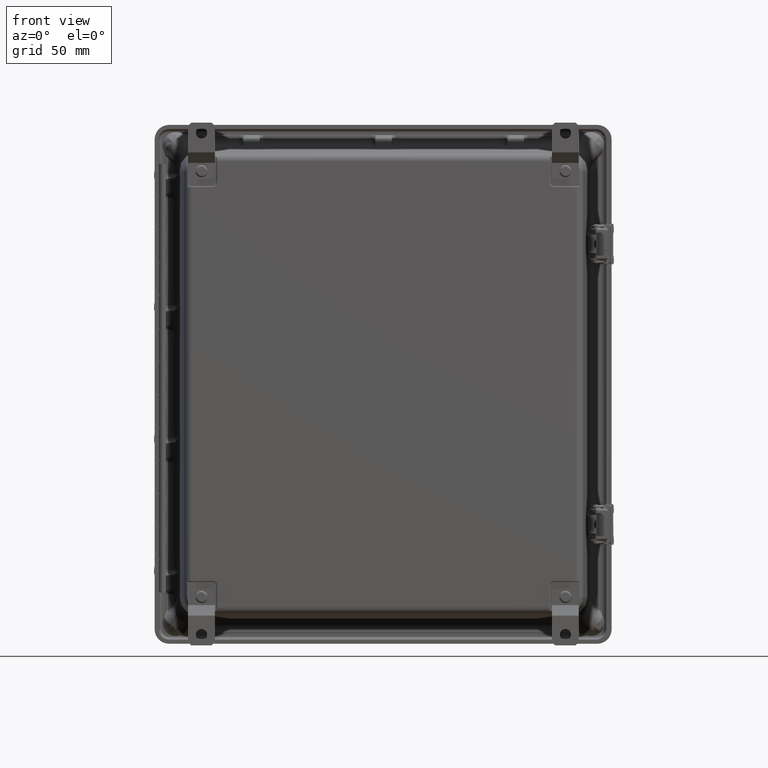
[diagram: clean part render]
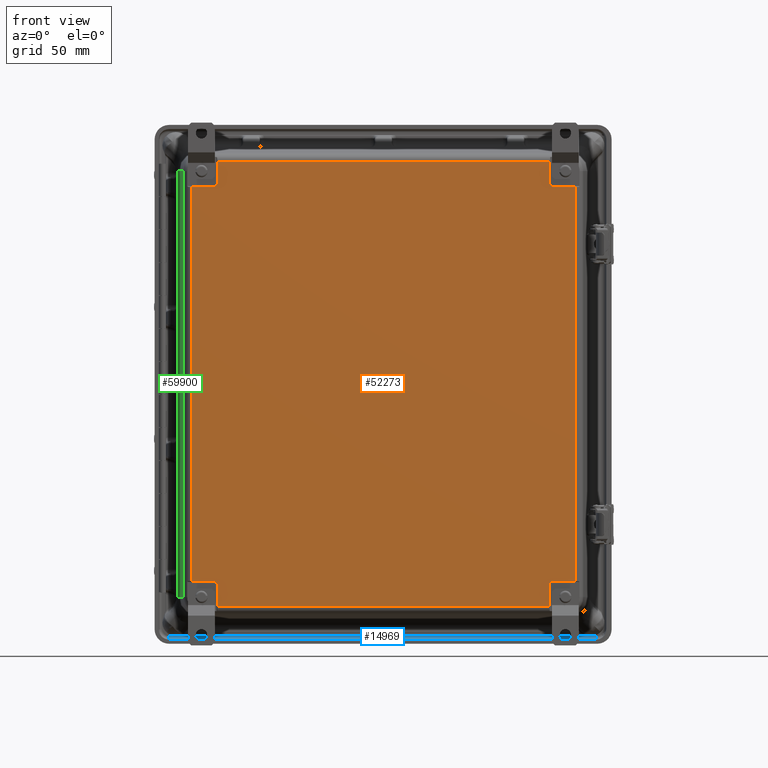
[diagram: same view with three faces highlighted in distinct colors, each labeled with its STEP entity id]
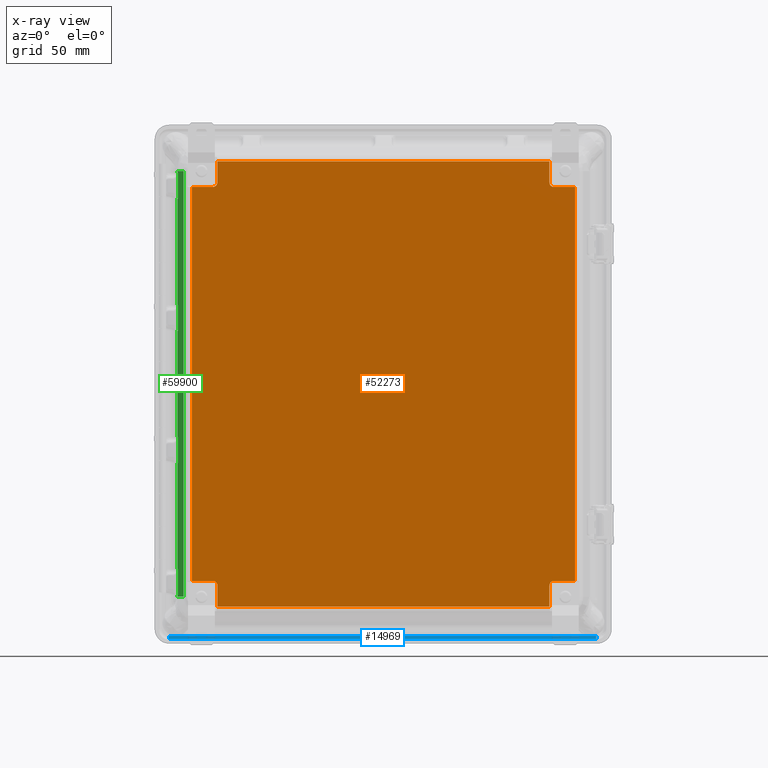
[diagram: x-ray of the same camera — body ghosted, the three highlighted faces saturated]
A machine part, front view with three faces highlighted in distinct colors.
The next image is the same camera in x-ray (body ghosted, the three faces saturated) — at least one of them is partly hidden behind the body in this view.
Their STEP definitions:

[orange] entity #52273 — the highlighted planar face has unit normal (0, -1, 0).
#731 = PLANE ( 'NONE',  #24927 ) ;
#751 = CARTESIAN_POINT ( 'NONE',  ( 5.514759860282454800, -6.128457498691858500, 6.748078965890023500 ) ) ;
#951 = CARTESIAN_POINT ( 'NONE',  ( -5.171179539717544000, -6.128457498691858500, 5.969985390059867400 ) ) ;
#1553 = ORIENTED_EDGE ( 'NONE', *, *, #7719, .T. ) ;
#2735 = DIRECTION ( 'NONE',  ( -0.0000000000000000000, 1.000000000000000000, 0.0000000000000000000 ) ) ;
#3003 = DIRECTION ( 'NONE',  ( 0.0000000000000000000, 0.0000000000000000000, -1.000000000000000000 ) ) ;
#3014 = VERTEX_POINT ( 'NONE', #53905 ) ;
#4220 = CARTESIAN_POINT ( 'NONE',  ( 5.171279660282454700, -6.128457498691858500, 5.969985390059869200 ) ) ;
#4325 = CARTESIAN_POINT ( 'NONE',  ( 5.171279660282454700, -6.128457498691858500, 5.969985390059869200 ) ) ;
#4330 = EDGE_CURVE ( 'NONE', #53900, #3014, #31550, .T. ) ;
#6024 = LINE ( 'NONE', #18995, #20122 ) ;
#6186 = VECTOR ( 'NONE', #54666, 39.37007874015748100 ) ;
#6390 = VECTOR ( 'NONE', #50547, 39.37007874015748100 ) ;
#7361 = LINE ( 'NONE', #52114, #48132 ) ;
#7648 = VERTEX_POINT ( 'NONE', #16209 ) ;
#7719 = EDGE_CURVE ( 'NONE', #38417, #39601, #17905, .T. ) ;
#9457 = EDGE_CURVE ( 'NONE', #42441, #56257, #59943, .T. ) ;
#9688 = DIRECTION ( 'NONE',  ( -0.0000000000000000000, -0.0000000000000000000, -1.000000000000000000 ) ) ;
#11003 = ORIENTED_EDGE ( 'NONE', *, *, #53692, .T. ) ;
#12492 = VERTEX_POINT ( 'NONE', #951 ) ;
#13205 = VERTEX_POINT ( 'NONE', #60244 ) ;
#13744 = DIRECTION ( 'NONE',  ( -0.0000000000000000000, -0.0000000000000000000, -1.000000000000000000 ) ) ;
#13937 = EDGE_CURVE ( 'NONE', #54137, #13205, #17742, .T. ) ;
#15069 = VERTEX_POINT ( 'NONE', #37888 ) ;
#15255 = LINE ( 'NONE', #44635, #40452 ) ;
#15520 = CIRCLE ( 'NONE', #46802, 0.1395127193384542700 ) ;
#15601 = ORIENTED_EDGE ( 'NONE', *, *, #9457, .T. ) ;
#16209 = CARTESIAN_POINT ( 'NONE',  ( -5.031666820379089500, -6.128457498691858500, -6.748165547093380600 ) ) ;
#16258 = DIRECTION ( 'NONE',  ( 1.000000000000000000, -0.0000000000000000000, 9.921365511764171400E-017 ) ) ;
#16782 = ORIENTED_EDGE ( 'NONE', *, *, #61096, .T. ) ;
#17312 = EDGE_CURVE ( 'NONE', #59351, #53900, #55277, .T. ) ;
#17632 = DIRECTION ( 'NONE',  ( 0.0000000000000000000, -0.0000000000000000000, 1.000000000000000000 ) ) ;
#17742 = LINE ( 'NONE', #42801, #30336 ) ;
#17905 = CIRCLE ( 'NONE', #60689, 0.1395127193384542700 ) ;
#18053 = DIRECTION ( 'NONE',  ( -0.0000000000000000000, 1.000000000000000000, 0.0000000000000000000 ) ) ;
#18790 = LINE ( 'NONE', #54872, #6186 ) ;
#18995 = CARTESIAN_POINT ( 'NONE',  ( -5.809760396209247400, -6.128457498691858500, 5.969985390059869200 ) ) ;
#19233 = EDGE_CURVE ( 'NONE', #31145, #42441, #7361, .T. ) ;
#20122 = VECTOR ( 'NONE', #52173, 39.37007874015748100 ) ;
#20448 = VECTOR ( 'NONE', #56084, 39.37007874015748100 ) ;
#21317 = ORIENTED_EDGE ( 'NONE', *, *, #13937, .T. ) ;
#21507 = ORIENTED_EDGE ( 'NONE', *, *, #29672, .T. ) ;
#21881 = CARTESIAN_POINT ( 'NONE',  ( 5.171279660282454700, -6.128457498691858500, -5.970071971263224400 ) ) ;
#21972 = CARTESIAN_POINT ( 'NONE',  ( 5.031766940944000200, -6.128457498691858500, 6.748078965890023500 ) ) ;
#22048 = VECTOR ( 'NONE', #57452, 39.37007874015748100 ) ;
#22928 = DIRECTION ( 'NONE',  ( 1.000000000000000000, -0.0000000000000000000, -0.0000000000000000000 ) ) ;
#22943 = CARTESIAN_POINT ( 'NONE',  ( -5.171179539717544000, -6.128457498691858500, -5.970071971263225300 ) ) ;
#23471 = CARTESIAN_POINT ( 'NONE',  ( -5.809760396209245700, -6.128457498691858500, -5.970071971263226200 ) ) ;
#23513 = CARTESIAN_POINT ( 'NONE',  ( 5.031766940943999300, -6.128457498691858500, -6.109584690601678000 ) ) ;
#23552 = LINE ( 'NONE', #751, #22048 ) ;
#23562 = CARTESIAN_POINT ( 'NONE',  ( 5.809860516774157300, -6.128457498691858500, 5.969985390059869200 ) ) ;
#23706 = DIRECTION ( 'NONE',  ( -0.0000000000000000000, -0.0000000000000000000, 1.000000000000000000 ) ) ;
#23876 = EDGE_CURVE ( 'NONE', #24566, #38417, #18790, .T. ) ;
#24157 = CARTESIAN_POINT ( 'NONE',  ( 5.031766940944000200, -6.128457498691858500, -6.748165547093379700 ) ) ;
#24547 = DIRECTION ( 'NONE',  ( 0.0000000000000000000, 0.0000000000000000000, -1.000000000000000000 ) ) ;
#24566 = VERTEX_POINT ( 'NONE', #24157 ) ;
#24927 = AXIS2_PLACEMENT_3D ( 'NONE', #43392, #52939, #24547 ) ;
#25314 = CARTESIAN_POINT ( 'NONE',  ( -5.031666820379091300, -6.128457498691858500, 6.748078965890024400 ) ) ;
#25370 = DIRECTION ( 'NONE',  ( -0.0000000000000000000, 1.000000000000000000, 0.0000000000000000000 ) ) ;
#26534 = ORIENTED_EDGE ( 'NONE', *, *, #17312, .T. ) ;
#27081 = EDGE_CURVE ( 'NONE', #12492, #59351, #6024, .T. ) ;
#29672 = EDGE_CURVE ( 'NONE', #15069, #54137, #23552, .T. ) ;
#29835 = CIRCLE ( 'NONE', #30816, 0.1395127193384542700 ) ;
#30139 = LINE ( 'NONE', #32567, #53832 ) ;
#30336 = VECTOR ( 'NONE', #9688, 39.37007874015748100 ) ;
#30816 = AXIS2_PLACEMENT_3D ( 'NONE', #46395, #18053, #51180 ) ;
#30923 = ORIENTED_EDGE ( 'NONE', *, *, #44977, .T. ) ;
#31101 = CARTESIAN_POINT ( 'NONE',  ( 5.171279660282454700, -6.128457498691858500, -6.109584690601678000 ) ) ;
#31145 = VERTEX_POINT ( 'NONE', #50817 ) ;
#31385 = DIRECTION ( 'NONE',  ( -0.0000000000000000000, 1.000000000000000000, 0.0000000000000000000 ) ) ;
#31550 = LINE ( 'NONE', #22943, #20448 ) ;
#31697 = VECTOR ( 'NONE', #22928, 39.37007874015748100 ) ;
#32567 = CARTESIAN_POINT ( 'NONE',  ( -5.031666820379089500, -6.128457498691858500, -6.748165547093380600 ) ) ;
#33955 = ORIENTED_EDGE ( 'NONE', *, *, #49821, .T. ) ;
#34191 = ORIENTED_EDGE ( 'NONE', *, *, #4330, .T. ) ;
#34987 = EDGE_CURVE ( 'NONE', #13205, #12492, #29835, .T. ) ;
#35872 = DIRECTION ( 'NONE',  ( 0.0000000000000000000, 0.0000000000000000000, -1.000000000000000000 ) ) ;
#36152 = ORIENTED_EDGE ( 'NONE', *, *, #34987, .T. ) ;
#36261 = VECTOR ( 'NONE', #51555, 39.37007874015748100 ) ;
#37252 = ORIENTED_EDGE ( 'NONE', *, *, #40035, .T. ) ;
#37888 = CARTESIAN_POINT ( 'NONE',  ( 5.031766940944000200, -6.128457498691858500, 6.748078965890023500 ) ) ;
#38417 = VERTEX_POINT ( 'NONE', #23513 ) ;
#39366 = ORIENTED_EDGE ( 'NONE', *, *, #27081, .T. ) ;
#39405 = VECTOR ( 'NONE', #17632, 39.37007874015748100 ) ;
#39601 = VERTEX_POINT ( 'NONE', #21881 ) ;
#40035 = EDGE_CURVE ( 'NONE', #7648, #24566, #15255, .T. ) ;
#40362 = ORIENTED_EDGE ( 'NONE', *, *, #23876, .T. ) ;
#40452 = VECTOR ( 'NONE', #16258, 39.37007874015748100 ) ;
#40752 = CARTESIAN_POINT ( 'NONE',  ( -5.809760396209247400, -6.128457498691858500, 5.969985390059869200 ) ) ;
#40882 = LINE ( 'NONE', #21972, #39405 ) ;
#42441 = VERTEX_POINT ( 'NONE', #23562 ) ;
#42527 = FACE_OUTER_BOUND ( 'NONE', #57108, .T. ) ;
#42789 = CIRCLE ( 'NONE', #47630, 0.1395127193384542700 ) ;
#42801 = CARTESIAN_POINT ( 'NONE',  ( -5.031666820379089500, -6.128457498691858500, 6.109498109398323600 ) ) ;
#43392 = CARTESIAN_POINT ( 'NONE',  ( 5.514759860282454800, -6.128457498691858500, 6.452978309398321100 ) ) ;
#44460 = ORIENTED_EDGE ( 'NONE', *, *, #53080, .T. ) ;
#44635 = CARTESIAN_POINT ( 'NONE',  ( 5.514759860282455700, -6.128457498691858500, -6.748165547093379700 ) ) ;
#44977 = EDGE_CURVE ( 'NONE', #61351, #15069, #40882, .T. ) ;
#45785 = CARTESIAN_POINT ( 'NONE',  ( -5.809760396209247400, -6.128457498691858500, 6.452978309398319300 ) ) ;
#46395 = CARTESIAN_POINT ( 'NONE',  ( -5.171179539717544000, -6.128457498691858500, 6.109498109398323600 ) ) ;
#46802 = AXIS2_PLACEMENT_3D ( 'NONE', #53738, #25370, #58467 ) ;
#47630 = AXIS2_PLACEMENT_3D ( 'NONE', #59707, #31385, #3003 ) ;
#48132 = VECTOR ( 'NONE', #23706, 39.37007874015748100 ) ;
#49512 = CARTESIAN_POINT ( 'NONE',  ( -5.031666820379088600, -6.128457498691858500, -6.109584690601678000 ) ) ;
#49821 = EDGE_CURVE ( 'NONE', #51339, #7648, #30139, .T. ) ;
#50547 = DIRECTION ( 'NONE',  ( 1.695746737221765600E-016, -0.0000000000000000000, -1.000000000000000000 ) ) ;
#50817 = CARTESIAN_POINT ( 'NONE',  ( 5.809860516774157300, -6.128457498691858500, -5.970071971263224400 ) ) ;
#51180 = DIRECTION ( 'NONE',  ( 0.0000000000000000000, 0.0000000000000000000, -1.000000000000000000 ) ) ;
#51339 = VERTEX_POINT ( 'NONE', #49512 ) ;
#51352 = CARTESIAN_POINT ( 'NONE',  ( 5.809860516774157300, -6.128457498691858500, -5.970071971263225300 ) ) ;
#51555 = DIRECTION ( 'NONE',  ( -1.000000000000000000, -0.0000000000000000000, -0.0000000000000000000 ) ) ;
#52114 = CARTESIAN_POINT ( 'NONE',  ( 5.809860516774157300, -6.128457498691858500, 6.452978309398321100 ) ) ;
#52173 = DIRECTION ( 'NONE',  ( -1.000000000000000000, -0.0000000000000000000, -0.0000000000000000000 ) ) ;
#52273 = ADVANCED_FACE ( 'NONE', ( #42527 ), #731, .T. ) ;
#52939 = DIRECTION ( 'NONE',  ( 0.0000000000000000000, -1.000000000000000000, 0.0000000000000000000 ) ) ;
#53080 = EDGE_CURVE ( 'NONE', #39601, #31145, #56902, .T. ) ;
#53692 = EDGE_CURVE ( 'NONE', #3014, #51339, #42789, .T. ) ;
#53738 = CARTESIAN_POINT ( 'NONE',  ( 5.171279660282454700, -6.128457498691858500, 6.109498109398323600 ) ) ;
#53832 = VECTOR ( 'NONE', #13744, 39.37007874015748100 ) ;
#53900 = VERTEX_POINT ( 'NONE', #23471 ) ;
#53905 = CARTESIAN_POINT ( 'NONE',  ( -5.171179539717544000, -6.128457498691858500, -5.970071971263225300 ) ) ;
#54137 = VERTEX_POINT ( 'NONE', #25314 ) ;
#54666 = DIRECTION ( 'NONE',  ( 0.0000000000000000000, -0.0000000000000000000, 1.000000000000000000 ) ) ;
#54872 = CARTESIAN_POINT ( 'NONE',  ( 5.031766940944000200, -6.128457498691858500, -6.109584690601678000 ) ) ;
#55277 = LINE ( 'NONE', #45785, #6390 ) ;
#55769 = CARTESIAN_POINT ( 'NONE',  ( 5.031766940943999300, -6.128457498691858500, 6.109498109398323600 ) ) ;
#56084 = DIRECTION ( 'NONE',  ( 1.000000000000000000, -0.0000000000000000000, -0.0000000000000000000 ) ) ;
#56257 = VERTEX_POINT ( 'NONE', #4220 ) ;
#56902 = LINE ( 'NONE', #51352, #31697 ) ;
#57108 = EDGE_LOOP ( 'NONE', ( #36152, #39366, #26534, #34191, #11003, #33955, #37252, #40362, #1553, #44460, #60752, #15601, #16782, #30923, #21507, #21317 ) ) ;
#57452 = DIRECTION ( 'NONE',  ( -1.000000000000000000, -0.0000000000000000000, 9.921365511764170200E-017 ) ) ;
#58467 = DIRECTION ( 'NONE',  ( 0.0000000000000000000, 0.0000000000000000000, -1.000000000000000000 ) ) ;
#59351 = VERTEX_POINT ( 'NONE', #40752 ) ;
#59707 = CARTESIAN_POINT ( 'NONE',  ( -5.171179539717544000, -6.128457498691858500, -6.109584690601678000 ) ) ;
#59943 = LINE ( 'NONE', #4325, #36261 ) ;
#60244 = CARTESIAN_POINT ( 'NONE',  ( -5.031666820379088600, -6.128457498691858500, 6.109498109398323600 ) ) ;
#60689 = AXIS2_PLACEMENT_3D ( 'NONE', #31101, #2735, #35872 ) ;
#60752 = ORIENTED_EDGE ( 'NONE', *, *, #19233, .T. ) ;
#61096 = EDGE_CURVE ( 'NONE', #56257, #61351, #15520, .T. ) ;
#61351 = VERTEX_POINT ( 'NONE', #55769 ) ;

[blue] entity #14969 — the highlighted cylindrical surface (edge-blend (fillet) strip) has radius 2.3622 mm, axis along (-1, 0, -0).
#624 = ORIENTED_EDGE ( 'NONE', *, *, #52897, .T. ) ;
#2899 = DIRECTION ( 'NONE',  ( 0.0000000000000000000, 0.0000000000000000000, 1.000000000000000000 ) ) ;
#3413 = CARTESIAN_POINT ( 'NONE',  ( -7.631335972718049200, 0.7820000000000000300, 6.488999999999997200 ) ) ;
#4270 = LINE ( 'NONE', #35940, #51697 ) ;
#7595 = VERTEX_POINT ( 'NONE', #58219 ) ;
#8205 = DIRECTION ( 'NONE',  ( -1.000000000000000000, 0.0000000000000000000, 0.0000000000000000000 ) ) ;
#9968 = ORIENTED_EDGE ( 'NONE', *, *, #43095, .F. ) ;
#10481 = CARTESIAN_POINT ( 'NONE',  ( -7.631335972718049200, 0.8750000000000000000, 6.488999999999997200 ) ) ;
#12350 = DIRECTION ( 'NONE',  ( -0.0000000000000000000, -0.0000000000000000000, 1.000000000000000000 ) ) ;
#14969 = ADVANCED_FACE ( 'NONE', ( #26509 ), #25039, .F. ) ;
#15742 = VERTEX_POINT ( 'NONE', #49985 ) ;
#21310 = CARTESIAN_POINT ( 'NONE',  ( -7.631335972718049200, 0.7820000000000000300, -6.459000000000001400 ) ) ;
#21736 = CARTESIAN_POINT ( 'NONE',  ( -7.631335972718049200, 0.7820000000000000300, 6.488999999999999900 ) ) ;
#22576 = EDGE_LOOP ( 'NONE', ( #624, #25252, #9968, #37385 ) ) ;
#22848 = DIRECTION ( 'NONE',  ( 0.0000000000000000000, 0.0000000000000000000, -1.000000000000000000 ) ) ;
#23510 = LINE ( 'NONE', #56000, #36102 ) ;
#23946 = CIRCLE ( 'NONE', #40029, 0.09300000000000034600 ) ;
#25039 = CYLINDRICAL_SURFACE ( 'NONE', #35699, 0.09300000000000034600 ) ;
#25252 = ORIENTED_EDGE ( 'NONE', *, *, #53558, .F. ) ;
#26080 = DIRECTION ( 'NONE',  ( -1.000000000000000000, 0.0000000000000000000, 1.174988384371721800E-014 ) ) ;
#26509 = FACE_OUTER_BOUND ( 'NONE', #22576, .T. ) ;
#28022 = CIRCLE ( 'NONE', #38464, 0.09300000000000034600 ) ;
#33742 = CARTESIAN_POINT ( 'NONE',  ( -7.724321808367594000, 0.7836230737986672500, -6.459000000000000500 ) ) ;
#35699 = AXIS2_PLACEMENT_3D ( 'NONE', #21736, #2899, #59602 ) ;
#35940 = CARTESIAN_POINT ( 'NONE',  ( -7.724321808367594000, 0.7836230737986673600, 6.488999999999999900 ) ) ;
#36102 = VECTOR ( 'NONE', #22848, 39.37007874015748100 ) ;
#36550 = DIRECTION ( 'NONE',  ( 0.0000000000000000000, 0.0000000000000000000, -1.000000000000000000 ) ) ;
#37385 = ORIENTED_EDGE ( 'NONE', *, *, #53440, .F. ) ;
#38464 = AXIS2_PLACEMENT_3D ( 'NONE', #21310, #54431, #26080 ) ;
#40029 = AXIS2_PLACEMENT_3D ( 'NONE', #3413, #36550, #8205 ) ;
#40730 = VERTEX_POINT ( 'NONE', #33742 ) ;
#42881 = VERTEX_POINT ( 'NONE', #10481 ) ;
#43095 = EDGE_CURVE ( 'NONE', #15742, #42881, #23946, .T. ) ;
#49985 = CARTESIAN_POINT ( 'NONE',  ( -7.724321808367594000, 0.7836230737986672500, 6.488999999999997200 ) ) ;
#51697 = VECTOR ( 'NONE', #12350, 39.37007874015748100 ) ;
#52897 = EDGE_CURVE ( 'NONE', #40730, #7595, #28022, .T. ) ;
#53440 = EDGE_CURVE ( 'NONE', #40730, #15742, #4270, .T. ) ;
#53558 = EDGE_CURVE ( 'NONE', #42881, #7595, #23510, .T. ) ;
#54431 = DIRECTION ( 'NONE',  ( -1.175167368053930700E-014, 0.0000000000000000000, -1.000000000000000000 ) ) ;
#56000 = CARTESIAN_POINT ( 'NONE',  ( -7.631335972718049200, 0.8750000000000000000, -6.459000000000000500 ) ) ;
#58219 = CARTESIAN_POINT ( 'NONE',  ( -7.631335972718049200, 0.8750000000000000000, -6.459000000000001400 ) ) ;
#59602 = DIRECTION ( 'NONE',  ( 1.000000000000000000, 0.0000000000000000000, 0.0000000000000000000 ) ) ;

[green] entity #59900 — the highlighted planar face has unit normal (-0.9994, -0.0349, -0).
#103 = CARTESIAN_POINT ( 'NONE',  ( -6.242367358640659200, -0.6633208354358416400, 6.448010704829464100 ) ) ;
#202 = EDGE_CURVE ( 'NONE', #6313, #16626, #32151, .T. ) ;
#226 = ORIENTED_EDGE ( 'NONE', *, *, #49098, .T. ) ;
#988 = ORIENTED_EDGE ( 'NONE', *, *, #1603, .T. ) ;
#1128 = CARTESIAN_POINT ( 'NONE',  ( -6.228843870452932300, -1.050582868448125800, -6.453064890601677200 ) ) ;
#1310 = DIRECTION ( 'NONE',  ( 1.695746737221765100E-016, -1.538867368090737600E-033, -1.000000000000000000 ) ) ;
#1603 = EDGE_CURVE ( 'NONE', #19815, #34868, #34066, .T. ) ;
#2073 = EDGE_CURVE ( 'NONE', #12216, #6891, #27323, .T. ) ;
#2199 = CARTESIAN_POINT ( 'NONE',  ( -6.248530016304006700, -0.4868454096923873800, 6.399904109398323500 ) ) ;
#2271 = CARTESIAN_POINT ( 'NONE',  ( -6.248530016304005000, -0.4868454096923873800, -6.453064890601677200 ) ) ;
#2460 = VECTOR ( 'NONE', #43425, 39.37007874015748100 ) ;
#2744 = DIRECTION ( 'NONE',  ( -0.03489949670250104600, 0.9993908270190957600, -7.703719777548943400E-034 ) ) ;
#2757 = VECTOR ( 'NONE', #1310, 39.37007874015748100 ) ;
#2873 = EDGE_CURVE ( 'NONE', #40784, #18874, #20499, .T. ) ;
#2895 = VECTOR ( 'NONE', #38627, 39.37007874015748900 ) ;
#2997 = CARTESIAN_POINT ( 'NONE',  ( -6.242678502220662100, -0.6544108490715451200, -6.439239246942016800 ) ) ;
#3040 = VECTOR ( 'NONE', #35388, 39.37007874015748100 ) ;
#4408 = PLANE ( 'NONE',  #52727 ) ;
#4461 = ORIENTED_EDGE ( 'NONE', *, *, #11396, .T. ) ;
#4627 = CARTESIAN_POINT ( 'NONE',  ( -6.059957889753476000, -5.886844587691330200, -6.453064890601677200 ) ) ;
#4859 = CARTESIAN_POINT ( 'NONE',  ( -6.242487326098364000, -0.6598854169313842500, 6.445399656829782700 ) ) ;
#6313 = VERTEX_POINT ( 'NONE', #35566 ) ;
#6320 = VECTOR ( 'NONE', #37749, 39.37007874015748100 ) ;
#6594 = CARTESIAN_POINT ( 'NONE',  ( -6.248530016304005800, -0.4868454096923873800, 1.611209309398323500 ) ) ;
#6704 = LINE ( 'NONE', #14213, #43038 ) ;
#6891 = VERTEX_POINT ( 'NONE', #41376 ) ;
#7146 = VERTEX_POINT ( 'NONE', #19181 ) ;
#7514 = CARTESIAN_POINT ( 'NONE',  ( -6.248530016304005800, -0.4868454096923873800, 2.394304109398321900 ) ) ;
#8173 = EDGE_CURVE ( 'NONE', #6891, #38748, #49000, .T. ) ;
#8664 = LINE ( 'NONE', #21688, #32353 ) ;
#8857 = ORIENTED_EDGE ( 'NONE', *, *, #54579, .T. ) ;
#9161 = EDGE_CURVE ( 'NONE', #24948, #12216, #22925, .T. ) ;
#9198 = CARTESIAN_POINT ( 'NONE',  ( -6.265709739717543400, 0.005117501308141511400, -6.453064890601677200 ) ) ;
#9438 = CARTESIAN_POINT ( 'NONE',  ( -6.241934177566280400, -0.6757255183991599500, 6.451190084694187200 ) ) ;
#10154 = VERTEX_POINT ( 'NONE', #56829 ) ;
#10688 = CARTESIAN_POINT ( 'NONE',  ( -6.242678502220662100, -0.6544108490715451200, -6.439239246942016800 ) ) ;
#10862 = VECTOR ( 'NONE', #34953, 39.37007874015748900 ) ;
#11043 = CARTESIAN_POINT ( 'NONE',  ( -6.228843870452932300, -1.050582868448123800, -1.611295890601677700 ) ) ;
#11147 = VERTEX_POINT ( 'NONE', #15905 ) ;
#11357 = CARTESIAN_POINT ( 'NONE',  ( -6.265697954248398800, 0.004780009628664140700, -6.429704277713730300 ) ) ;
#11396 = EDGE_CURVE ( 'NONE', #13342, #19815, #17983, .T. ) ;
#11645 = CARTESIAN_POINT ( 'NONE',  ( -6.228843870452932300, -1.050582868448125800, -6.399990690601677000 ) ) ;
#12216 = VERTEX_POINT ( 'NONE', #13197 ) ;
#12267 = CARTESIAN_POINT ( 'NONE',  ( -6.248530016304006700, -0.4868454096923873800, 5.616809309398322000 ) ) ;
#12409 = DIRECTION ( 'NONE',  ( 0.03489949670250104600, -0.9993908270190957600, 7.703719777548943400E-034 ) ) ;
#12524 = EDGE_CURVE ( 'NONE', #27378, #16626, #45781, .T. ) ;
#13197 = CARTESIAN_POINT ( 'NONE',  ( -6.228843870452932300, -1.050582868448124000, -2.394390690601677200 ) ) ;
#13281 = VECTOR ( 'NONE', #54031, 39.37007874015748100 ) ;
#13342 = VERTEX_POINT ( 'NONE', #27943 ) ;
#13581 = LINE ( 'NONE', #15259, #2460 ) ;
#13959 = DIRECTION ( 'NONE',  ( -0.9993908270190957600, -0.03489949670250104600, -1.694713734126993400E-016 ) ) ;
#14024 = ORIENTED_EDGE ( 'NONE', *, *, #30603, .T. ) ;
#14161 = ORIENTED_EDGE ( 'NONE', *, *, #9161, .T. ) ;
#14213 = CARTESIAN_POINT ( 'NONE',  ( -6.248530016304005000, -0.4868454096923873800, -6.453064890601677200 ) ) ;
#14579 = DIRECTION ( 'NONE',  ( 1.757106239172417000E-016, -1.757106239172417300E-016, -1.000000000000000000 ) ) ;
#15259 = CARTESIAN_POINT ( 'NONE',  ( -6.248530016304005000, -0.4868454096923873800, -6.453064890601677200 ) ) ;
#15294 = LINE ( 'NONE', #25891, #51593 ) ;
#15376 = LINE ( 'NONE', #58020, #2757 ) ;
#15508 = LINE ( 'NONE', #57423, #2895 ) ;
#15551 = ORIENTED_EDGE ( 'NONE', *, *, #30150, .T. ) ;
#15793 = ORIENTED_EDGE ( 'NONE', *, *, #41721, .T. ) ;
#15811 = CARTESIAN_POINT ( 'NONE',  ( -6.248530016304005000, -0.4868454096923873800, -6.453064890601677200 ) ) ;
#15905 = CARTESIAN_POINT ( 'NONE',  ( -6.059957889753477800, -5.886844587691329300, 6.452978309398322000 ) ) ;
#16211 = EDGE_CURVE ( 'NONE', #18520, #27378, #59703, .T. ) ;
#16626 = VERTEX_POINT ( 'NONE', #44646 ) ;
#17472 = LINE ( 'NONE', #50094, #39706 ) ;
#17983 = LINE ( 'NONE', #42937, #20934 ) ;
#18076 = VECTOR ( 'NONE', #49550, 39.37007874015748900 ) ;
#18520 = VERTEX_POINT ( 'NONE', #50924 ) ;
#18733 = CARTESIAN_POINT ( 'NONE',  ( -6.228843870452933200, -1.050582868448121100, 1.611209309398323500 ) ) ;
#18874 = VERTEX_POINT ( 'NONE', #30177 ) ;
#19071 = CARTESIAN_POINT ( 'NONE',  ( -6.242657868161157500, -0.6550017312258367100, 6.439816915665081100 ) ) ;
#19181 = CARTESIAN_POINT ( 'NONE',  ( -6.248530016304005800, -0.4868454096923873800, -1.611295890601677700 ) ) ;
#19335 = EDGE_CURVE ( 'NONE', #11147, #40784, #15508, .T. ) ;
#19815 = VERTEX_POINT ( 'NONE', #38341 ) ;
#19840 = ORIENTED_EDGE ( 'NONE', *, *, #40217, .T. ) ;
#19875 = ORIENTED_EDGE ( 'NONE', *, *, #8173, .T. ) ;
#20356 = EDGE_CURVE ( 'NONE', #22533, #13342, #25776, .T. ) ;
#20499 = B_SPLINE_CURVE_WITH_KNOTS ( 'NONE', 3,
 ( #23698, #37174, #9438, #56818, #28454, #103, #33227, #4859 ),
 .UNSPECIFIED., .F., .F.,
 ( 4, 2, 2, 4 ),
 ( -6.766291768392844400E-005, 0.0002583322614168873800, 0.0004213298509672911200, 0.0005843274405176949600 ),
 .UNSPECIFIED. ) ;
#20934 = VECTOR ( 'NONE', #14579, 39.37007874015748100 ) ;
#20972 = CARTESIAN_POINT ( 'NONE',  ( -6.265709739717543400, 0.005117501308141491500, -6.453064890601677200 ) ) ;
#21456 = CARTESIAN_POINT ( 'NONE',  ( -6.231425093615387200, -0.9766663081883630900, 6.399904109398323500 ) ) ;
#21688 = CARTESIAN_POINT ( 'NONE',  ( -6.272207714755717600, 0.1911951603272742400, 6.426921265420443100 ) ) ;
#21712 = VERTEX_POINT ( 'NONE', #37307 ) ;
#22078 = EDGE_CURVE ( 'NONE', #7146, #24948, #17472, .T. ) ;
#22533 = VERTEX_POINT ( 'NONE', #2199 ) ;
#22785 = DIRECTION ( 'NONE',  ( 1.757106239172417000E-016, -1.757106239172417300E-016, -1.000000000000000000 ) ) ;
#22867 = EDGE_LOOP ( 'NONE', ( #33454, #226, #14024, #15551, #52839, #4461, #988, #42763, #31073, #15793, #50269, #40949, #31777, #14161, #43871, #19875, #8857, #24628, #48135, #32040, #37515, #49578, #35745, #19840, #24605 ) ) ;
#22913 = VECTOR ( 'NONE', #2744, 39.37007874015748100 ) ;
#22925 = LINE ( 'NONE', #60690, #46662 ) ;
#23698 = CARTESIAN_POINT ( 'NONE',  ( -6.241642157261383200, -0.6840878858139726200, 6.452978309398322000 ) ) ;
#23811 = VERTEX_POINT ( 'NONE', #11645 ) ;
#23859 = CARTESIAN_POINT ( 'NONE',  ( -6.242671624200818700, -0.6546078097896591600, 6.439374082380804300 ) ) ;
#24309 = VECTOR ( 'NONE', #59344, 39.37007874015748100 ) ;
#24605 = ORIENTED_EDGE ( 'NONE', *, *, #19335, .T. ) ;
#24628 = ORIENTED_EDGE ( 'NONE', *, *, #44823, .T. ) ;
#24948 = VERTEX_POINT ( 'NONE', #11043 ) ;
#25413 = CARTESIAN_POINT ( 'NONE',  ( -6.241642157261383200, -0.6840878858139726200, 6.452978309398322000 ) ) ;
#25469 = CARTESIAN_POINT ( 'NONE',  ( -6.231425093615386300, -0.9766663081883632000, -5.616895890601676400 ) ) ;
#25776 = LINE ( 'NONE', #21456, #24309 ) ;
#25891 = CARTESIAN_POINT ( 'NONE',  ( -6.231425093615387200, -0.9766663081883635300, 2.394304109398322800 ) ) ;
#26243 = VERTEX_POINT ( 'NONE', #7514 ) ;
#26671 = VECTOR ( 'NONE', #30294, 39.37007874015748100 ) ;
#27318 = CARTESIAN_POINT ( 'NONE',  ( -6.242678502220663000, -0.6544108490715480100, 6.439152665738659700 ) ) ;
#27323 = LINE ( 'NONE', #49488, #13281 ) ;
#27378 = VERTEX_POINT ( 'NONE', #2997 ) ;
#27943 = CARTESIAN_POINT ( 'NONE',  ( -6.228843870452933200, -1.050582868448118900, 6.399904109398323500 ) ) ;
#28454 = CARTESIAN_POINT ( 'NONE',  ( -6.242225504579618400, -0.6673830042571102800, 6.449302774635540000 ) ) ;
#28670 = EDGE_CURVE ( 'NONE', #23811, #10154, #41459, .T. ) ;
#29049 = B_SPLINE_CURVE_WITH_KNOTS ( 'NONE', 3,
 ( #42712, #61305, #47476, #19071, #52254, #23859, #56963 ),
 .UNSPECIFIED., .F., .F.,
 ( 4, 3, 4 ),
 ( 0.0002520075349367435600, 0.0004404491464765364000, 0.0004630365233079541600 ),
 .UNSPECIFIED. ) ;
#29167 = LINE ( 'NONE', #61104, #54327 ) ;
#30150 = EDGE_CURVE ( 'NONE', #40767, #22533, #15376, .T. ) ;
#30177 = CARTESIAN_POINT ( 'NONE',  ( -6.242487326098364000, -0.6598854169313842500, 6.445399656829782700 ) ) ;
#30181 = DIRECTION ( 'NONE',  ( -0.03489949670250104600, 0.9993908270190957600, -7.703719777548943400E-034 ) ) ;
#30294 = DIRECTION ( 'NONE',  ( 1.695746737221765100E-016, -1.538867368090737600E-033, -1.000000000000000000 ) ) ;
#30603 = EDGE_CURVE ( 'NONE', #51187, #40767, #8664, .T. ) ;
#31073 = ORIENTED_EDGE ( 'NONE', *, *, #50110, .T. ) ;
#31110 = CARTESIAN_POINT ( 'NONE',  ( -6.265709739717546100, 0.005117501308141439400, 5.616809309398322000 ) ) ;
#31777 = ORIENTED_EDGE ( 'NONE', *, *, #22078, .T. ) ;
#31903 = EDGE_CURVE ( 'NONE', #45751, #33784, #53015, .T. ) ;
#32040 = ORIENTED_EDGE ( 'NONE', *, *, #45754, .T. ) ;
#32151 = LINE ( 'NONE', #20972, #18076 ) ;
#32353 = VECTOR ( 'NONE', #54794, 39.37007874015748900 ) ;
#32772 = DIRECTION ( 'NONE',  ( 1.757106239172417000E-016, -1.757106239172417300E-016, -1.000000000000000000 ) ) ;
#33227 = CARTESIAN_POINT ( 'NONE',  ( -6.242437588880822100, -0.6613097044906409700, 6.447052477692268200 ) ) ;
#33454 = ORIENTED_EDGE ( 'NONE', *, *, #2873, .T. ) ;
#33760 = CARTESIAN_POINT ( 'NONE',  ( -6.265709739717543400, 0.005117501308141511400, -6.399990690601677000 ) ) ;
#33784 = VERTEX_POINT ( 'NONE', #6594 ) ;
#34066 = LINE ( 'NONE', #31110, #22913 ) ;
#34254 = DIRECTION ( 'NONE',  ( 1.757106239172417000E-016, -1.757106239172417300E-016, -1.000000000000000000 ) ) ;
#34868 = VERTEX_POINT ( 'NONE', #12267 ) ;
#34953 = DIRECTION ( 'NONE',  ( 0.03489585077468929800, -0.9992864213068273200, -0.01445433466142391000 ) ) ;
#35388 = DIRECTION ( 'NONE',  ( 1.695746737221765100E-016, -1.538867368090737600E-033, -1.000000000000000000 ) ) ;
#35507 = CARTESIAN_POINT ( 'NONE',  ( -6.228843870452932300, -1.050582868448125500, -5.616895890601676400 ) ) ;
#35566 = CARTESIAN_POINT ( 'NONE',  ( -6.059957889753476000, -5.886844587691329300, -6.453064890601677200 ) ) ;
#35745 = ORIENTED_EDGE ( 'NONE', *, *, #202, .F. ) ;
#37174 = CARTESIAN_POINT ( 'NONE',  ( -6.241788064339056400, -0.6799096537820215100, 6.452070745419117500 ) ) ;
#37307 = CARTESIAN_POINT ( 'NONE',  ( -6.228843870452933200, -1.050582868448120900, 2.394304109398322800 ) ) ;
#37483 = LINE ( 'NONE', #25469, #49446 ) ;
#37515 = ORIENTED_EDGE ( 'NONE', *, *, #16211, .T. ) ;
#37749 = DIRECTION ( 'NONE',  ( -1.695746737221765100E-016, 1.541681963340650700E-033, 1.000000000000000000 ) ) ;
#38341 = CARTESIAN_POINT ( 'NONE',  ( -6.228843870452934100, -1.050582868448119100, 5.616809309398322000 ) ) ;
#38627 = DIRECTION ( 'NONE',  ( -0.03489949670250104600, 0.9993908270190957600, -5.918070766394789300E-018 ) ) ;
#38748 = VERTEX_POINT ( 'NONE', #50804 ) ;
#39045 = CARTESIAN_POINT ( 'NONE',  ( -6.241977784647265700, -0.6744767749831135400, -6.447864872712131900 ) ) ;
#39531 = CARTESIAN_POINT ( 'NONE',  ( -6.248530016304006700, -0.4868454096923873800, 6.436728889244929700 ) ) ;
#39706 = VECTOR ( 'NONE', #12409, 39.37007874015748100 ) ;
#40217 = EDGE_CURVE ( 'NONE', #6313, #11147, #42667, .T. ) ;
#40767 = VERTEX_POINT ( 'NONE', #39531 ) ;
#40784 = VERTEX_POINT ( 'NONE', #25413 ) ;
#40949 = ORIENTED_EDGE ( 'NONE', *, *, #60243, .T. ) ;
#41376 = CARTESIAN_POINT ( 'NONE',  ( -6.248530016304005800, -0.4868454096923873800, -2.394390690601677200 ) ) ;
#41459 = LINE ( 'NONE', #33760, #52599 ) ;
#41564 = FACE_OUTER_BOUND ( 'NONE', #22867, .T. ) ;
#41721 = EDGE_CURVE ( 'NONE', #21712, #45751, #29167, .T. ) ;
#42667 = LINE ( 'NONE', #4627, #6320 ) ;
#42712 = CARTESIAN_POINT ( 'NONE',  ( -6.242487326098364000, -0.6598854169313842500, 6.445399656829782700 ) ) ;
#42763 = ORIENTED_EDGE ( 'NONE', *, *, #58189, .T. ) ;
#42937 = CARTESIAN_POINT ( 'NONE',  ( -6.228843870452932300, -1.050582868448121100, -6.453064890601677200 ) ) ;
#43038 = VECTOR ( 'NONE', #52101, 39.37007874015748100 ) ;
#43425 = DIRECTION ( 'NONE',  ( 1.695746737221765100E-016, -1.538867368090737600E-033, -1.000000000000000000 ) ) ;
#43784 = CARTESIAN_POINT ( 'NONE',  ( -6.241642157261553700, -0.6840878858090466700, -6.453064890601677200 ) ) ;
#43871 = ORIENTED_EDGE ( 'NONE', *, *, #2073, .T. ) ;
#44646 = CARTESIAN_POINT ( 'NONE',  ( -6.241642157261553700, -0.6840878858090466700, -6.453064890601677200 ) ) ;
#44823 = EDGE_CURVE ( 'NONE', #45578, #23811, #59392, .T. ) ;
#45578 = VERTEX_POINT ( 'NONE', #35507 ) ;
#45751 = VERTEX_POINT ( 'NONE', #18733 ) ;
#45754 = EDGE_CURVE ( 'NONE', #10154, #18520, #6704, .T. ) ;
#45781 = B_SPLINE_CURVE_WITH_KNOTS ( 'NONE', 3,
 ( #10688, #48364, #39045, #43784 ),
 .UNSPECIFIED., .F., .F.,
 ( 4, 4 ),
 ( -2.764305227841880700E-005, 0.0008054862230986697500 ),
 .UNSPECIFIED. ) ;
#46662 = VECTOR ( 'NONE', #22785, 39.37007874015748100 ) ;
#46814 = VECTOR ( 'NONE', #34254, 39.37007874015748100 ) ;
#47066 = DIRECTION ( 'NONE',  ( 0.03489949670250104600, -0.9993908270190957600, 0.0000000000000000000 ) ) ;
#47476 = CARTESIAN_POINT ( 'NONE',  ( -6.242600540579730700, -0.6566433783676728400, 6.441665694345085800 ) ) ;
#48135 = ORIENTED_EDGE ( 'NONE', *, *, #28670, .T. ) ;
#48364 = CARTESIAN_POINT ( 'NONE',  ( -6.242323567134448600, -0.6645748600993381900, -6.443252642063929300 ) ) ;
#49000 = LINE ( 'NONE', #2271, #3040 ) ;
#49098 = EDGE_CURVE ( 'NONE', #18874, #51187, #29049, .T. ) ;
#49105 = DIRECTION ( 'NONE',  ( 0.03489949670250104600, -0.9993908270190957600, 7.703719777548943400E-034 ) ) ;
#49446 = VECTOR ( 'NONE', #49105, 39.37007874015748100 ) ;
#49488 = CARTESIAN_POINT ( 'NONE',  ( -6.265709739717545200, 0.005117501308141488000, -2.394390690601677200 ) ) ;
#49550 = DIRECTION ( 'NONE',  ( -0.03489949670250104600, 0.9993908270190957600, 0.0000000000000000000 ) ) ;
#49578 = ORIENTED_EDGE ( 'NONE', *, *, #12524, .T. ) ;
#50094 = CARTESIAN_POINT ( 'NONE',  ( -6.231425093615386300, -0.9766663081883633100, -1.611295890601677700 ) ) ;
#50110 = EDGE_CURVE ( 'NONE', #26243, #21712, #15294, .T. ) ;
#50269 = ORIENTED_EDGE ( 'NONE', *, *, #31903, .T. ) ;
#50804 = CARTESIAN_POINT ( 'NONE',  ( -6.248530016304005000, -0.4868454096923873800, -5.616895890601676400 ) ) ;
#50924 = CARTESIAN_POINT ( 'NONE',  ( -6.248530016304005000, -0.4868454096923873800, -6.436815470448277800 ) ) ;
#51187 = VERTEX_POINT ( 'NONE', #27318 ) ;
#51508 = VECTOR ( 'NONE', #30181, 39.37007874015748100 ) ;
#51593 = VECTOR ( 'NONE', #54248, 39.37007874015748100 ) ;
#51901 = LINE ( 'NONE', #15811, #26671 ) ;
#52101 = DIRECTION ( 'NONE',  ( 1.695746737221765100E-016, -1.538867368090737600E-033, -1.000000000000000000 ) ) ;
#52254 = CARTESIAN_POINT ( 'NONE',  ( -6.242664739335457300, -0.6548049665382477100, 6.439595324587362900 ) ) ;
#52599 = VECTOR ( 'NONE', #52627, 39.37007874015748100 ) ;
#52627 = DIRECTION ( 'NONE',  ( -0.03489949670250104600, 0.9993908270190957600, -7.703719777548943400E-034 ) ) ;
#52727 = AXIS2_PLACEMENT_3D ( 'NONE', #9198, #13959, #47066 ) ;
#52839 = ORIENTED_EDGE ( 'NONE', *, *, #20356, .T. ) ;
#53015 = LINE ( 'NONE', #58501, #51508 ) ;
#54031 = DIRECTION ( 'NONE',  ( -0.03489949670250104600, 0.9993908270190957600, -7.703719777548943400E-034 ) ) ;
#54248 = DIRECTION ( 'NONE',  ( 0.03489949670250104600, -0.9993908270190957600, 7.703719777548943400E-034 ) ) ;
#54327 = VECTOR ( 'NONE', #32772, 39.37007874015748100 ) ;
#54579 = EDGE_CURVE ( 'NONE', #38748, #45578, #37483, .T. ) ;
#54794 = DIRECTION ( 'NONE',  ( -0.03489585077468929800, 0.9992864213068273200, -0.01445433466142393200 ) ) ;
#56818 = CARTESIAN_POINT ( 'NONE',  ( -6.242152604179256800, -0.6694705985862097200, 6.449771930973677000 ) ) ;
#56829 = CARTESIAN_POINT ( 'NONE',  ( -6.248530016304005000, -0.4868454096923873800, -6.399990690601677000 ) ) ;
#56963 = CARTESIAN_POINT ( 'NONE',  ( -6.242678502220663000, -0.6544108490715480100, 6.439152665738659700 ) ) ;
#57423 = CARTESIAN_POINT ( 'NONE',  ( -6.265709739717546100, 0.005117501308141511400, 6.452978309398322000 ) ) ;
#58020 = CARTESIAN_POINT ( 'NONE',  ( -6.248530016304005000, -0.4868454096923873800, -6.453064890601677200 ) ) ;
#58189 = EDGE_CURVE ( 'NONE', #34868, #26243, #13581, .T. ) ;
#58501 = CARTESIAN_POINT ( 'NONE',  ( -6.265709739717545200, 0.005117501308141462900, 1.611209309398323500 ) ) ;
#59344 = DIRECTION ( 'NONE',  ( 0.03489949670250104600, -0.9993908270190957600, 7.703719777548943400E-034 ) ) ;
#59392 = LINE ( 'NONE', #1128, #46814 ) ;
#59703 = LINE ( 'NONE', #11357, #10862 ) ;
#59900 = ADVANCED_FACE ( 'NONE', ( #41564 ), #4408, .T. ) ;
#60243 = EDGE_CURVE ( 'NONE', #33784, #7146, #51901, .T. ) ;
#60690 = CARTESIAN_POINT ( 'NONE',  ( -6.228843870452932300, -1.050582868448124700, -6.453064890601677200 ) ) ;
#61104 = CARTESIAN_POINT ( 'NONE',  ( -6.228843870452932300, -1.050582868448122400, -6.453064890601677200 ) ) ;
#61305 = CARTESIAN_POINT ( 'NONE',  ( -6.242543688551767100, -0.6582714074400710700, 6.443526672304130900 ) ) ;